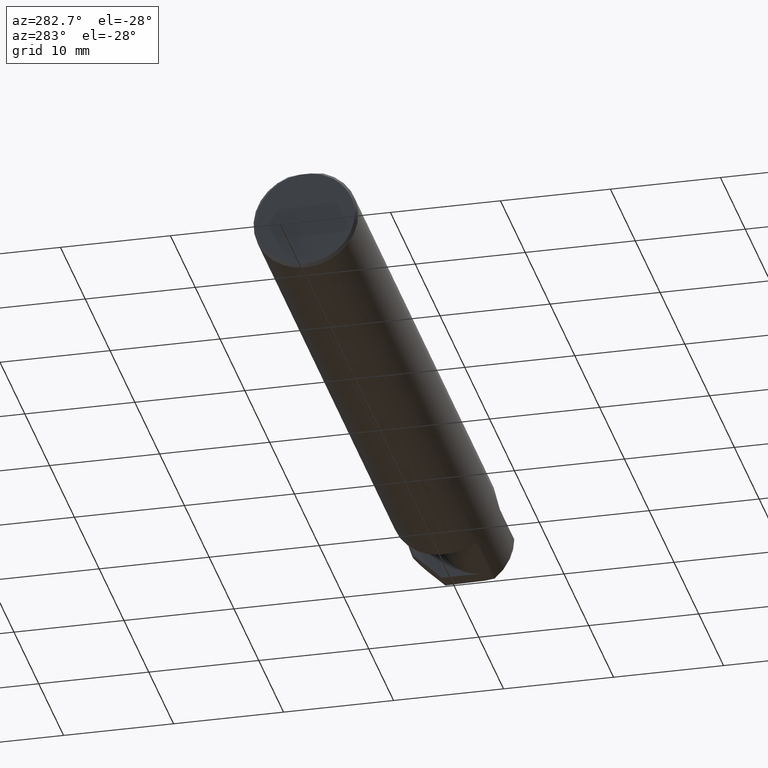
[diagram: clean part render]
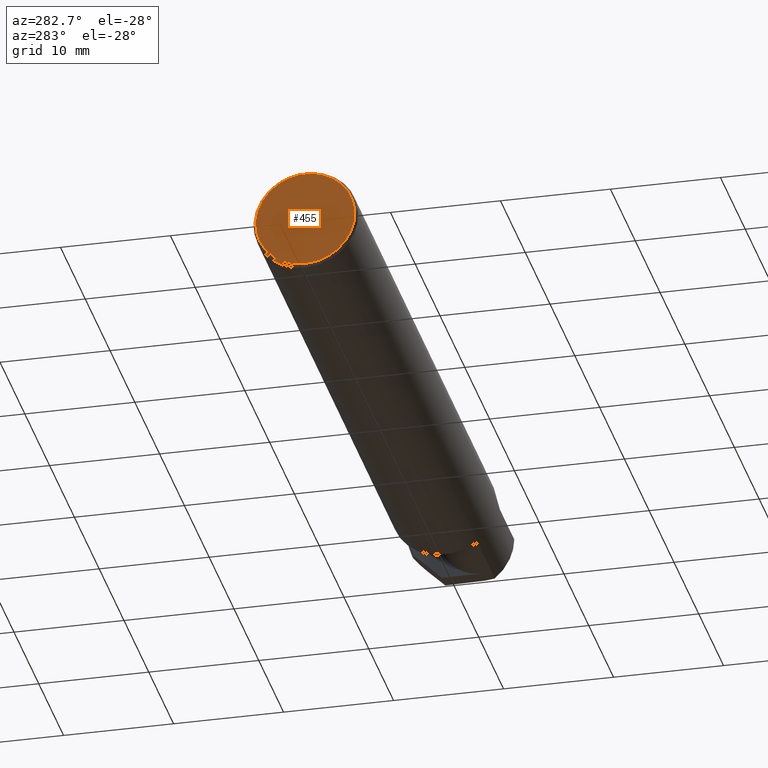
[diagram: same view with one face highlighted and labeled with its STEP entity id]
A machine part, auxiliary view. The second image highlights one B-rep face of the part: STEP entity #455.
In plain terms, the highlighted planar face has unit normal (1, 0, 0).
Its self-contained STEP definition (entity closure, byte-faithful):
#15 = CARTESIAN_POINT ( 'NONE',  ( 0.000000000000000000, 0.000000000000000000, 0.000000000000000000 ) ) ;
#18 = CIRCLE ( 'NONE', #522, 0.1773500000000005072 ) ;
#31 = DIRECTION ( 'NONE',  ( 0.000000000000000000, 0.000000000000000000, -1.000000000000000000 ) ) ;
#69 = FACE_OUTER_BOUND ( 'NONE', #262, .T. ) ;
#74 = LINE ( 'NONE', #508, #124 ) ;
#82 = ORIENTED_EDGE ( 'NONE', *, *, #175, .T. ) ;
#90 = AXIS2_PLACEMENT_3D ( 'NONE', #15, #614, #125 ) ;
#117 = VERTEX_POINT ( 'NONE', #202 ) ;
#124 = VECTOR ( 'NONE', #659, 39.37007874015748143 ) ;
#125 = DIRECTION ( 'NONE',  ( 0.000000000000000000, 0.000000000000000000, -1.000000000000000000 ) ) ;
#141 = CARTESIAN_POINT ( 'NONE',  ( 0.000000000000000000, 0.000000000000000000, -0.1773500000000005072 ) ) ;
#166 = VERTEX_POINT ( 'NONE', #141 ) ;
#175 = EDGE_CURVE ( 'NONE', #534, #166, #488, .T. ) ;
#202 = CARTESIAN_POINT ( 'NONE',  ( 0.000000000000000000, -0.01880691362239451242, 0.1763499999999999235 ) ) ;
#205 = DIRECTION ( 'NONE',  ( -1.000000000000000000, -0.000000000000000000, -0.000000000000000000 ) ) ;
#262 = EDGE_LOOP ( 'NONE', ( #553, #82, #632 ) ) ;
#356 = CARTESIAN_POINT ( 'NONE',  ( 0.000000000000000000, 0.000000000000000000, 0.000000000000000000 ) ) ;
#370 = EDGE_CURVE ( 'NONE', #117, #534, #74, .T. ) ;
#402 = PLANE ( 'NONE',  #90 ) ;
#445 = AXIS2_PLACEMENT_3D ( 'NONE', #690, #205, #31 ) ;
#455 = ADVANCED_FACE ( 'NONE', ( #69 ), #402, .F. ) ;
#460 = DIRECTION ( 'NONE',  ( -1.000000000000000000, -0.000000000000000000, -0.000000000000000000 ) ) ;
#474 = EDGE_CURVE ( 'NONE', #166, #117, #18, .T. ) ;
#488 = CIRCLE ( 'NONE', #445, 0.1773500000000005072 ) ;
#508 = CARTESIAN_POINT ( 'NONE',  ( 0.000000000000000000, 0.1873499999999998500, 0.1763499999999999235 ) ) ;
#522 = AXIS2_PLACEMENT_3D ( 'NONE', #356, #460, #573 ) ;
#534 = VERTEX_POINT ( 'NONE', #633 ) ;
#553 = ORIENTED_EDGE ( 'NONE', *, *, #370, .T. ) ;
#573 = DIRECTION ( 'NONE',  ( 0.000000000000000000, 0.000000000000000000, -1.000000000000000000 ) ) ;
#614 = DIRECTION ( 'NONE',  ( 1.000000000000000000, 0.000000000000000000, 0.000000000000000000 ) ) ;
#632 = ORIENTED_EDGE ( 'NONE', *, *, #474, .T. ) ;
#633 = CARTESIAN_POINT ( 'NONE',  ( 0.000000000000000000, 0.01880691362239451242, 0.1763499999999999235 ) ) ;
#659 = DIRECTION ( 'NONE',  ( -0.000000000000000000, 1.000000000000000000, -0.000000000000000000 ) ) ;
#690 = CARTESIAN_POINT ( 'NONE',  ( 0.000000000000000000, 0.000000000000000000, 0.000000000000000000 ) ) ;